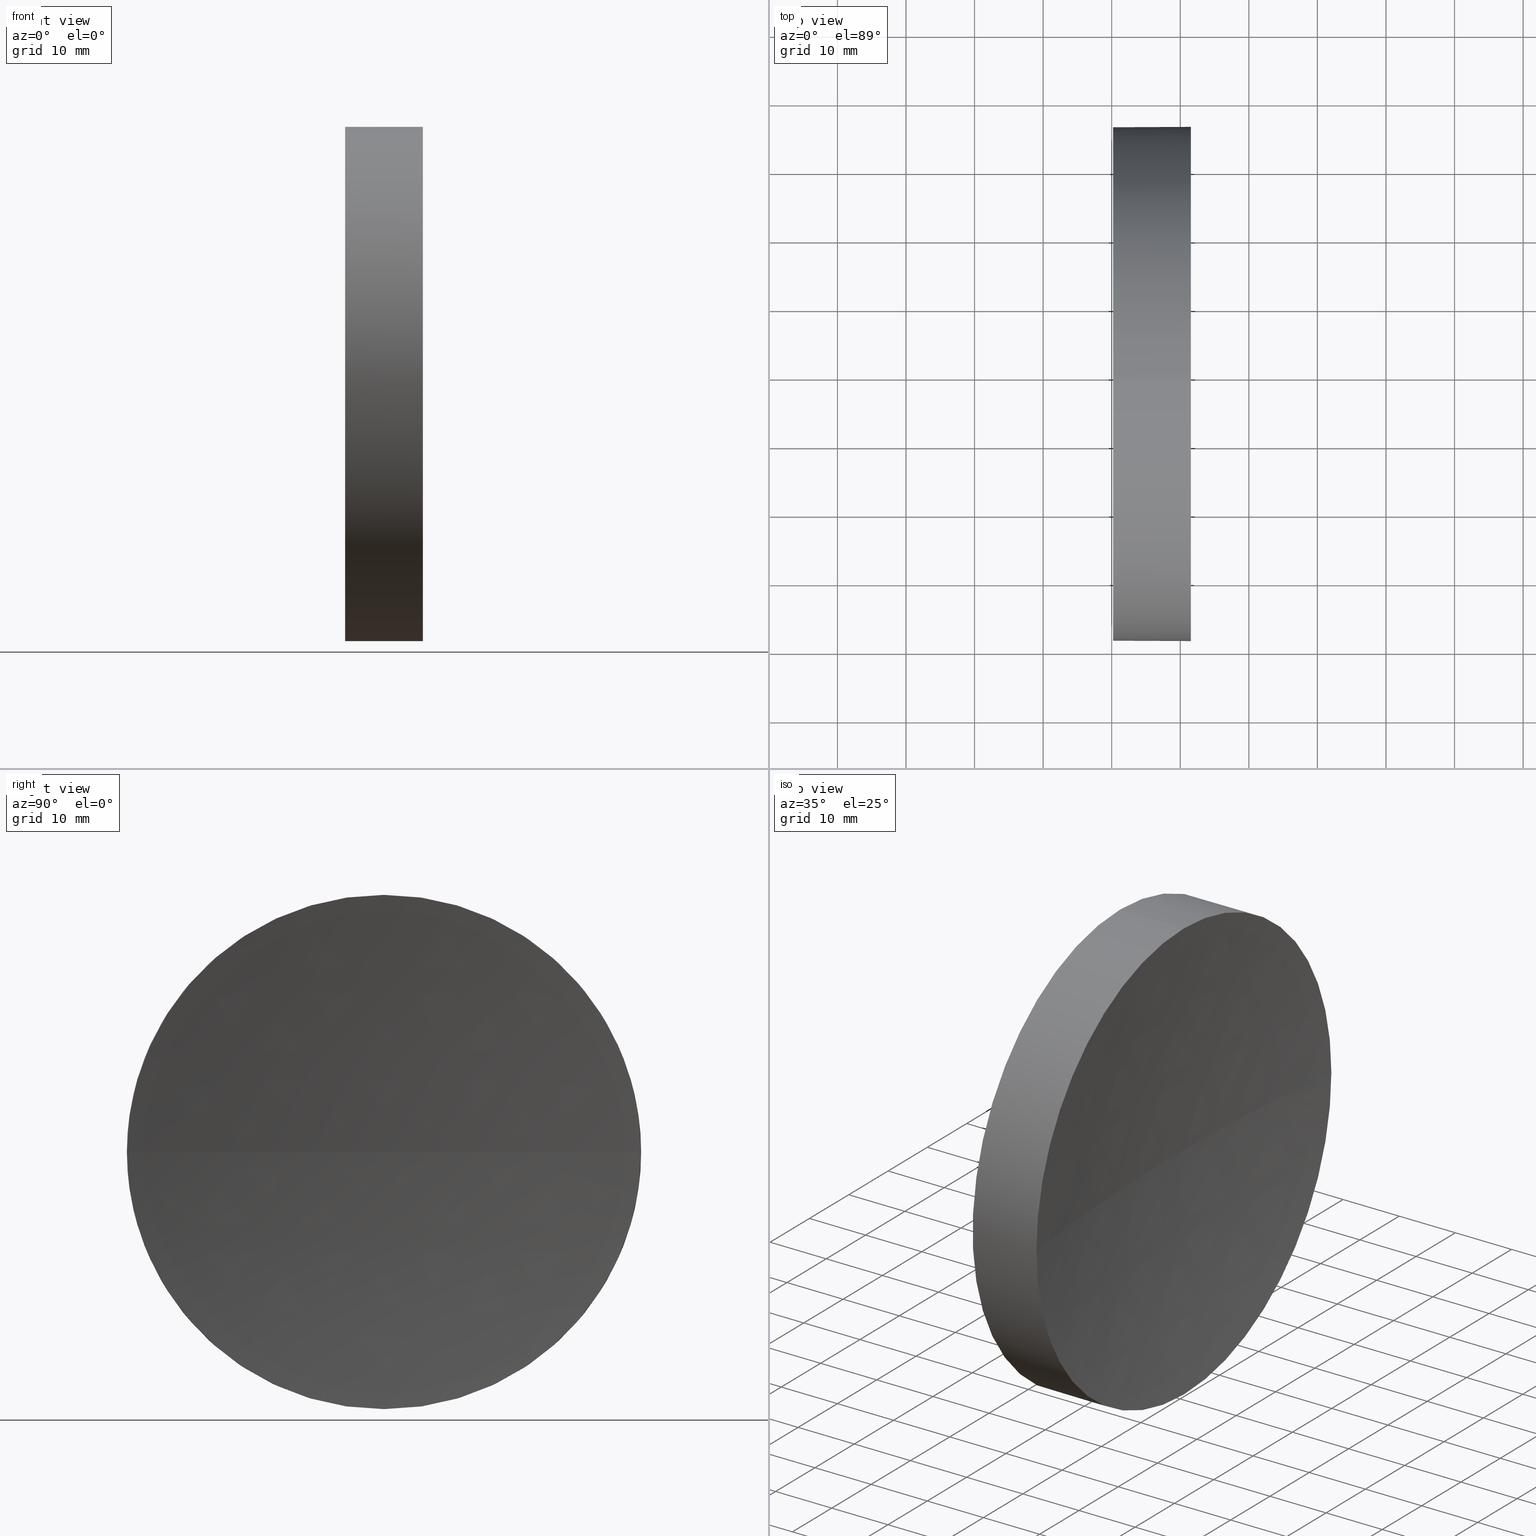
[diagram: canonical four-view strip — front | top / right | iso, engineering-drawing reading convention]
A machine part, canonical four-view strip (front | top / right | iso — engineering-drawing reading convention). The complete STEP part file that produces these views, byte-faithful:
ISO-10303-21;
HEADER;
FILE_DESCRIPTION (( 'STEP AP214' ),
    '1' );
FILE_NAME ('270060.STEP',
    '2019-07-23T07:28:13',
    ( '' ),
    ( '' ),
    'SwSTEP 2.0',
    'SolidWorks 2016',
    '' );
FILE_SCHEMA (( 'AUTOMOTIVE_DESIGN' ));
ENDSEC;

DATA;
#1 = PRODUCT ( '270060', '270060', '', ( #52 ) ) ;
#2 = AXIS2_PLACEMENT_3D ( 'NONE', #142, #29, #145 ) ;
#3 = ORIENTED_EDGE ( 'NONE', *, *, #111, .T. ) ;
#4 = FILL_AREA_STYLE ('',( #23 ) ) ;
#5 = MANIFOLD_SOLID_BREP ( '��ת1', #159 ) ;
#6 = CARTESIAN_POINT ( 'NONE',  ( 217.9702860043302100, 138.7560422467448700, 0.0000000000000000000 ) ) ;
#7 = PRESENTATION_LAYER_ASSIGNMENT (  '', '', ( #21 ) ) ;
#8 = DIRECTION ( 'NONE',  ( 0.0000000000000000000, 0.0000000000000000000, 1.000000000000000000 ) ) ;
#9 = CARTESIAN_POINT ( 'NONE',  ( 217.9702860043302100, 138.7560422467448700, 0.0000000000000000000 ) ) ;
#10 = CIRCLE ( 'NONE', #68, 37.50000000000000700 ) ;
#11 = ORIENTED_EDGE ( 'NONE', *, *, #42, .T. ) ;
#12 = DIRECTION ( 'NONE',  ( 0.0000000000000000000, 1.000000000000000000, 0.0000000000000000000 ) ) ;
#13 = UNCERTAINTY_MEASURE_WITH_UNIT (LENGTH_MEASURE( 1.000000000000000100E-005 ), #123, 'distance_accuracy_value', 'NONE');
#14 = CARTESIAN_POINT ( 'NONE',  ( 0.0000000000000000000, 0.0000000000000000000, 0.0000000000000000000 ) ) ;
#15 = SPHERICAL_SURFACE ( 'NONE', #87, 300.0000000000000600 ) ;
#16 = PRODUCT_RELATED_PRODUCT_CATEGORY ( 'part', '', ( #1 ) ) ;
#17 = CARTESIAN_POINT ( 'NONE',  ( 230.1996119052661200, 138.7560422467448700, 0.0000000000000000000 ) ) ;
#18 = AXIS2_PLACEMENT_3D ( 'NONE', #27, #92, #8 ) ;
#19 = SURFACE_STYLE_FILL_AREA ( #126 ) ;
#20 = SPHERICAL_SURFACE ( 'NONE', #70, 300.0000000000000600 ) ;
#21 = STYLED_ITEM ( 'NONE', ( #40 ), #5 ) ;
#22 = ADVANCED_FACE ( 'NONE', ( #124 ), #15, .F. ) ;
#23 = FILL_AREA_STYLE_COLOUR ( '', #44 ) ;
#24 = SURFACE_STYLE_USAGE ( .BOTH. , #139 ) ;
#25 = ORIENTED_EDGE ( 'NONE', *, *, #183, .T. ) ;
#26 = PRESENTATION_STYLE_ASSIGNMENT (( #150 ) ) ;
#27 = CARTESIAN_POINT ( 'NONE',  ( 241.5525897013507700, 138.7560422467448700, 0.0000000000000000000 ) ) ;
#28 = ORIENTED_EDGE ( 'NONE', *, *, #111, .F. ) ;
#29 = DIRECTION ( 'NONE',  ( -1.000000000000000000, -0.0000000000000000000, -0.0000000000000000000 ) ) ;
#30 = ORIENTED_EDGE ( 'NONE', *, *, #100, .F. ) ;
#31 = UNCERTAINTY_MEASURE_WITH_UNIT (LENGTH_MEASURE( 1.000000000000000100E-005 ), #161, 'distance_accuracy_value', 'NONE');
#32 = DIRECTION ( 'NONE',  ( 0.0000000000000000000, 1.224646799147353200E-016, -1.000000000000000000 ) ) ;
#33 =( NAMED_UNIT ( * ) PLANE_ANGLE_UNIT ( ) SI_UNIT ( $, .RADIAN. ) );
#34 = AXIS2_PLACEMENT_3D ( 'NONE', #156, #63, #107 ) ;
#35 = ORIENTED_EDGE ( 'NONE', *, *, #129, .F. ) ;
#36 = VERTEX_POINT ( 'NONE', #45 ) ;
#37 = AXIS2_PLACEMENT_3D ( 'NONE', #77, #32, #97 ) ;
#38 = ADVANCED_FACE ( 'NONE', ( #113 ), #184, .T. ) ;
#39 = PRODUCT_DEFINITION_CONTEXT ( 'detailed design', #148, 'design' ) ;
#40 = PRESENTATION_STYLE_ASSIGNMENT (( #24 ) ) ;
#41 = ORIENTED_EDGE ( 'NONE', *, *, #53, .F. ) ;
#42 = EDGE_CURVE ( 'NONE', #138, #136, #69, .T. ) ;
#43 = DIRECTION ( 'NONE',  ( -1.000000000000000000, -0.0000000000000000000, -0.0000000000000000000 ) ) ;
#44 = COLOUR_RGB ( '',1.000000000000000000, 1.000000000000000000, 1.000000000000000000 ) ;
#45 = CARTESIAN_POINT ( 'NONE',  ( 230.1996119052661200, 138.7560422467448700, 37.50000000000000700 ) ) ;
#46 = DIRECTION ( 'NONE',  ( -1.000000000000000000, -0.0000000000000000000, -0.0000000000000000000 ) ) ;
#47 = FACE_OUTER_BOUND ( 'NONE', #168, .T. ) ;
#48 = ORIENTED_EDGE ( 'NONE', *, *, #72, .T. ) ;
#49 =( GEOMETRIC_REPRESENTATION_CONTEXT ( 3 ) GLOBAL_UNCERTAINTY_ASSIGNED_CONTEXT ( ( #13 ) ) GLOBAL_UNIT_ASSIGNED_CONTEXT ( ( #123, #33, #162 ) ) REPRESENTATION_CONTEXT ( 'NONE', 'WORKASPACE' ) );
#50 = CARTESIAN_POINT ( 'NONE',  ( 230.1996119052661200, 138.7560422467448700, 0.0000000000000000000 ) ) ;
#51 = APPLICATION_PROTOCOL_DEFINITION ( 'draft international standard', 'automotive_design', 1998, #181 ) ;
#52 = PRODUCT_CONTEXT ( 'NONE', #181, 'mechanical' ) ;
#53 = EDGE_CURVE ( 'NONE', #116, #88, #58, .T. ) ;
#54 = SURFACE_SIDE_STYLE ('',( #19 ) ) ;
#55 = EDGE_CURVE ( 'NONE', #36, #136, #174, .T. ) ;
#56 = ADVANCED_FACE ( 'NONE', ( #83 ), #60, .T. ) ;
#57 = MECHANICAL_DESIGN_GEOMETRIC_PRESENTATION_REPRESENTATION (  '', ( #21 ), #125 ) ;
#58 = CIRCLE ( 'NONE', #2, 37.50000000000000700 ) ;
#59 = CARTESIAN_POINT ( 'NONE',  ( 217.9702860043302100, 138.7560422467448700, -37.50000000000000700 ) ) ;
#60 = CYLINDRICAL_SURFACE ( 'NONE', #90, 37.50000000000000700 ) ;
#61 = ORIENTED_EDGE ( 'NONE', *, *, #163, .T. ) ;
#62 = DIRECTION ( 'NONE',  ( 0.0000000000000000000, 0.0000000000000000000, 1.000000000000000000 ) ) ;
#63 = DIRECTION ( 'NONE',  ( -1.000000000000000000, -0.0000000000000000000, -0.0000000000000000000 ) ) ;
#64 = CARTESIAN_POINT ( 'NONE',  ( 230.1996119052661200, 138.7560422467448700, -37.50000000000000700 ) ) ;
#65 = DIRECTION ( 'NONE',  ( 1.000000000000000000, 0.0000000000000000000, 0.0000000000000000000 ) ) ;
#66 = CIRCLE ( 'NONE', #34, 37.50000000000000700 ) ;
#67 = ORIENTED_EDGE ( 'NONE', *, *, #55, .T. ) ;
#68 = AXIS2_PLACEMENT_3D ( 'NONE', #76, #182, #110 ) ;
#69 = LINE ( 'NONE', #59, #121 ) ;
#70 = AXIS2_PLACEMENT_3D ( 'NONE', #93, #179, #12 ) ;
#71 = DIRECTION ( 'NONE',  ( 0.0000000000000000000, 0.0000000000000000000, 1.000000000000000000 ) ) ;
#72 = EDGE_CURVE ( 'NONE', #73, #138, #66, .T. ) ;
#73 = VERTEX_POINT ( 'NONE', #105 ) ;
#74 = EDGE_CURVE ( 'NONE', #88, #36, #149, .T. ) ;
#75 = FILL_AREA_STYLE_COLOUR ( '', #169 ) ;
#76 = CARTESIAN_POINT ( 'NONE',  ( 230.1996119052661200, 138.7560422467448700, 0.0000000000000000000 ) ) ;
#77 = CARTESIAN_POINT ( 'NONE',  ( 539.1996121961171900, 138.7560422467447000, 0.0000000000000000000 ) ) ;
#78 =( GEOMETRIC_REPRESENTATION_CONTEXT ( 3 ) GLOBAL_UNCERTAINTY_ASSIGNED_CONTEXT ( ( #31 ) ) GLOBAL_UNIT_ASSIGNED_CONTEXT ( ( #161, #131, #165 ) ) REPRESENTATION_CONTEXT ( 'NONE', 'WORKASPACE' ) );
#79 = AXIS2_PLACEMENT_3D ( 'NONE', #14, #132, #173 ) ;
#80 = DIRECTION ( 'NONE',  ( 0.0000000000000000000, 0.0000000000000000000, 1.000000000000000000 ) ) ;
#81 = EDGE_LOOP ( 'NONE', ( #67, #61 ) ) ;
#82 = AXIS2_PLACEMENT_3D ( 'NONE', #6, #43, #71 ) ;
#83 = FACE_OUTER_BOUND ( 'NONE', #170, .T. ) ;
#84 = ORIENTED_EDGE ( 'NONE', *, *, #74, .T. ) ;
#85 = UNCERTAINTY_MEASURE_WITH_UNIT (LENGTH_MEASURE( 1.000000000000000100E-005 ), #91, 'distance_accuracy_value', 'NONE');
#86 = ADVANCED_FACE ( 'NONE', ( #47 ), #20, .F. ) ;
#87 = AXIS2_PLACEMENT_3D ( 'NONE', #177, #155, #104 ) ;
#88 = VERTEX_POINT ( 'NONE', #144 ) ;
#89 = ORIENTED_EDGE ( 'NONE', *, *, #74, .F. ) ;
#90 = AXIS2_PLACEMENT_3D ( 'NONE', #9, #130, #158 ) ;
#91 =( LENGTH_UNIT ( ) NAMED_UNIT ( * ) SI_UNIT ( .MILLI., .METRE. ) );
#92 = DIRECTION ( 'NONE',  ( -1.000000000000000000, -0.0000000000000000000, -0.0000000000000000000 ) ) ;
#93 = CARTESIAN_POINT ( 'NONE',  ( 539.1996121961171900, 138.7560422467447000, 0.0000000000000000000 ) ) ;
#94 = AXIS2_PLACEMENT_3D ( 'NONE', #178, #106, #164 ) ;
#95 = ORIENTED_EDGE ( 'NONE', *, *, #55, .F. ) ;
#96 = DIRECTION ( 'NONE',  ( 0.0000000000000000000, 0.0000000000000000000, -1.000000000000000000 ) ) ;
#97 = DIRECTION ( 'NONE',  ( 0.0000000000000000000, 1.000000000000000000, 1.224646799147353200E-016 ) ) ;
#98 = ADVANCED_BREP_SHAPE_REPRESENTATION ( '270060', ( #5, #79 ), #78 ) ;
#99 = PRODUCT_DEFINITION_FORMATION_WITH_SPECIFIED_SOURCE ( '�κ�', '', #1, .NOT_KNOWN. ) ;
#100 = EDGE_CURVE ( 'NONE', #88, #73, #171, .T. ) ;
#101 = AXIS2_PLACEMENT_3D ( 'NONE', #134, #112, #80 ) ;
#102 = DIRECTION ( 'NONE',  ( -1.000000000000000000, -0.0000000000000000000, -0.0000000000000000000 ) ) ;
#103 = ORIENTED_EDGE ( 'NONE', *, *, #72, .F. ) ;
#104 = DIRECTION ( 'NONE',  ( 0.0000000000000000000, 1.000000000000000000, 0.0000000000000000000 ) ) ;
#105 = CARTESIAN_POINT ( 'NONE',  ( 241.5525897013507400, 176.2560422467447800, 0.0000000000000000000 ) ) ;
#106 = DIRECTION ( 'NONE',  ( 0.0000000000000000000, 0.0000000000000000000, 1.000000000000000000 ) ) ;
#107 = DIRECTION ( 'NONE',  ( 0.0000000000000000000, 0.0000000000000000000, 1.000000000000000000 ) ) ;
#108 = FACE_OUTER_BOUND ( 'NONE', #81, .T. ) ;
#109 = AXIS2_PLACEMENT_3D ( 'NONE', #17, #65, #96 ) ;
#110 = DIRECTION ( 'NONE',  ( 0.0000000000000000000, 0.0000000000000000000, 1.000000000000000000 ) ) ;
#111 = EDGE_CURVE ( 'NONE', #73, #122, #135, .T. ) ;
#112 = DIRECTION ( 'NONE',  ( -1.000000000000000000, -0.0000000000000000000, -0.0000000000000000000 ) ) ;
#113 = FACE_OUTER_BOUND ( 'NONE', #154, .T. ) ;
#114 = AXIS2_PLACEMENT_3D ( 'NONE', #50, #46, #62 ) ;
#115 = CIRCLE ( 'NONE', #101, 37.50000000000000700 ) ;
#116 = VERTEX_POINT ( 'NONE', #180 ) ;
#117 = PRODUCT_DEFINITION ( 'δ֪', '', #99, #39 ) ;
#118 = ORIENTED_EDGE ( 'NONE', *, *, #183, .F. ) ;
#119 =( NAMED_UNIT ( * ) PLANE_ANGLE_UNIT ( ) SI_UNIT ( $, .RADIAN. ) );
#120 = DIRECTION ( 'NONE',  ( -1.000000000000000000, -0.0000000000000000000, -0.0000000000000000000 ) ) ;
#121 = VECTOR ( 'NONE', #102, 1000.000000000000000 ) ;
#122 = VERTEX_POINT ( 'NONE', #146 ) ;
#123 =( LENGTH_UNIT ( ) NAMED_UNIT ( * ) SI_UNIT ( .MILLI., .METRE. ) );
#124 = FACE_OUTER_BOUND ( 'NONE', #175, .T. ) ;
#125 =( GEOMETRIC_REPRESENTATION_CONTEXT ( 3 ) GLOBAL_UNCERTAINTY_ASSIGNED_CONTEXT ( ( #85 ) ) GLOBAL_UNIT_ASSIGNED_CONTEXT ( ( #91, #119, #141 ) ) REPRESENTATION_CONTEXT ( 'NONE', 'WORKASPACE' ) );
#126 = FILL_AREA_STYLE ('',( #75 ) ) ;
#127 = ORIENTED_EDGE ( 'NONE', *, *, #53, .T. ) ;
#128 = SHAPE_DEFINITION_REPRESENTATION ( #143, #98 ) ;
#129 = EDGE_CURVE ( 'NONE', #116, #122, #137, .T. ) ;
#130 = DIRECTION ( 'NONE',  ( -1.000000000000000000, -0.0000000000000000000, -0.0000000000000000000 ) ) ;
#131 =( NAMED_UNIT ( * ) PLANE_ANGLE_UNIT ( ) SI_UNIT ( $, .RADIAN. ) );
#132 = DIRECTION ( 'NONE',  ( 0.0000000000000000000, 0.0000000000000000000, 1.000000000000000000 ) ) ;
#133 = STYLED_ITEM ( 'NONE', ( #26 ), #98 ) ;
#134 = CARTESIAN_POINT ( 'NONE',  ( 241.5525897013507700, 138.7560422467448700, 0.0000000000000000000 ) ) ;
#135 = CIRCLE ( 'NONE', #94, 300.0000000000000600 ) ;
#136 = VERTEX_POINT ( 'NONE', #64 ) ;
#137 = CIRCLE ( 'NONE', #37, 300.0000000000000600 ) ;
#138 = VERTEX_POINT ( 'NONE', #160 ) ;
#139 = SURFACE_SIDE_STYLE ('',( #140 ) ) ;
#140 = SURFACE_STYLE_FILL_AREA ( #4 ) ;
#141 =( NAMED_UNIT ( * ) SI_UNIT ( $, .STERADIAN. ) SOLID_ANGLE_UNIT ( ) );
#142 = CARTESIAN_POINT ( 'NONE',  ( 241.5525897013507700, 138.7560422467448700, 0.0000000000000000000 ) ) ;
#143 = PRODUCT_DEFINITION_SHAPE ( 'NONE', 'NONE',  #117 ) ;
#144 = CARTESIAN_POINT ( 'NONE',  ( 241.5525897013507700, 138.7560422467448700, 37.50000000000000700 ) ) ;
#145 = DIRECTION ( 'NONE',  ( 0.0000000000000000000, 0.0000000000000000000, 1.000000000000000000 ) ) ;
#146 = CARTESIAN_POINT ( 'NONE',  ( 239.1996121961171900, 138.7560422467447300, 0.0000000000000000000 ) ) ;
#147 = PLANE ( 'NONE',  #109 ) ;
#148 = APPLICATION_CONTEXT ( 'automotive_design' ) ;
#149 = LINE ( 'NONE', #157, #167 ) ;
#150 = SURFACE_STYLE_USAGE ( .BOTH. , #54 ) ;
#151 = ORIENTED_EDGE ( 'NONE', *, *, #129, .T. ) ;
#152 = ADVANCED_FACE ( 'NONE', ( #108 ), #147, .F. ) ;
#153 = PRESENTATION_LAYER_ASSIGNMENT (  '', '', ( #133 ) ) ;
#154 = EDGE_LOOP ( 'NONE', ( #48, #11, #95, #89, #176 ) ) ;
#155 = DIRECTION ( 'NONE',  ( 0.0000000000000000000, 0.0000000000000000000, -1.000000000000000000 ) ) ;
#156 = CARTESIAN_POINT ( 'NONE',  ( 241.5525897013507700, 138.7560422467448700, 0.0000000000000000000 ) ) ;
#157 = CARTESIAN_POINT ( 'NONE',  ( 217.9702860043302100, 138.7560422467448700, 37.50000000000000700 ) ) ;
#158 = DIRECTION ( 'NONE',  ( 0.0000000000000000000, 0.0000000000000000000, 1.000000000000000000 ) ) ;
#159 = CLOSED_SHELL ( 'NONE', ( #38, #86, #22, #56, #152 ) ) ;
#160 = CARTESIAN_POINT ( 'NONE',  ( 241.5525897013507700, 138.7560422467448700, -37.50000000000000700 ) ) ;
#161 =( LENGTH_UNIT ( ) NAMED_UNIT ( * ) SI_UNIT ( .MILLI., .METRE. ) );
#162 =( NAMED_UNIT ( * ) SI_UNIT ( $, .STERADIAN. ) SOLID_ANGLE_UNIT ( ) );
#163 = EDGE_CURVE ( 'NONE', #136, #36, #10, .T. ) ;
#164 = DIRECTION ( 'NONE',  ( 1.000000000000000000, 0.0000000000000000000, 0.0000000000000000000 ) ) ;
#165 =( NAMED_UNIT ( * ) SI_UNIT ( $, .STERADIAN. ) SOLID_ANGLE_UNIT ( ) );
#166 = MECHANICAL_DESIGN_GEOMETRIC_PRESENTATION_REPRESENTATION (  '', ( #133 ), #49 ) ;
#167 = VECTOR ( 'NONE', #120, 1000.000000000000000 ) ;
#168 = EDGE_LOOP ( 'NONE', ( #41, #151, #28, #30 ) ) ;
#169 = COLOUR_RGB ( '',1.000000000000000000, 1.000000000000000000, 1.000000000000000000 ) ;
#170 = EDGE_LOOP ( 'NONE', ( #172, #25, #127, #84, #185 ) ) ;
#171 = CIRCLE ( 'NONE', #18, 37.50000000000000700 ) ;
#172 = ORIENTED_EDGE ( 'NONE', *, *, #42, .F. ) ;
#173 = DIRECTION ( 'NONE',  ( 1.000000000000000000, 0.0000000000000000000, 0.0000000000000000000 ) ) ;
#174 = CIRCLE ( 'NONE', #114, 37.50000000000000700 ) ;
#175 = EDGE_LOOP ( 'NONE', ( #35, #118, #103, #3 ) ) ;
#176 = ORIENTED_EDGE ( 'NONE', *, *, #100, .T. ) ;
#177 = CARTESIAN_POINT ( 'NONE',  ( 539.1996121961171900, 138.7560422467447000, 0.0000000000000000000 ) ) ;
#178 = CARTESIAN_POINT ( 'NONE',  ( 539.1996121961171900, 138.7560422467447000, 0.0000000000000000000 ) ) ;
#179 = DIRECTION ( 'NONE',  ( 0.0000000000000000000, 0.0000000000000000000, -1.000000000000000000 ) ) ;
#180 = CARTESIAN_POINT ( 'NONE',  ( 241.5525897013507400, 101.2560422467448000, -4.592425496802562500E-015 ) ) ;
#181 = APPLICATION_CONTEXT ( 'automotive_design' ) ;
#182 = DIRECTION ( 'NONE',  ( -1.000000000000000000, -0.0000000000000000000, -0.0000000000000000000 ) ) ;
#183 = EDGE_CURVE ( 'NONE', #138, #116, #115, .T. ) ;
#184 = CYLINDRICAL_SURFACE ( 'NONE', #82, 37.50000000000000700 ) ;
#185 = ORIENTED_EDGE ( 'NONE', *, *, #163, .F. ) ;
#186 = APPLICATION_PROTOCOL_DEFINITION ( 'draft international standard', 'automotive_design', 1998, #148 ) ;
ENDSEC;
END-ISO-10303-21;
